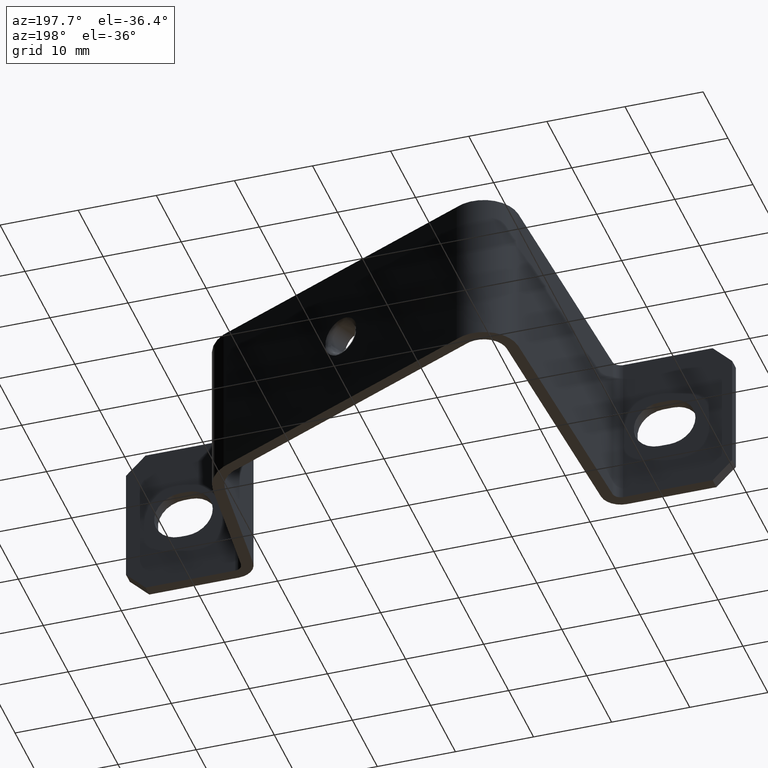
[diagram: clean part render]
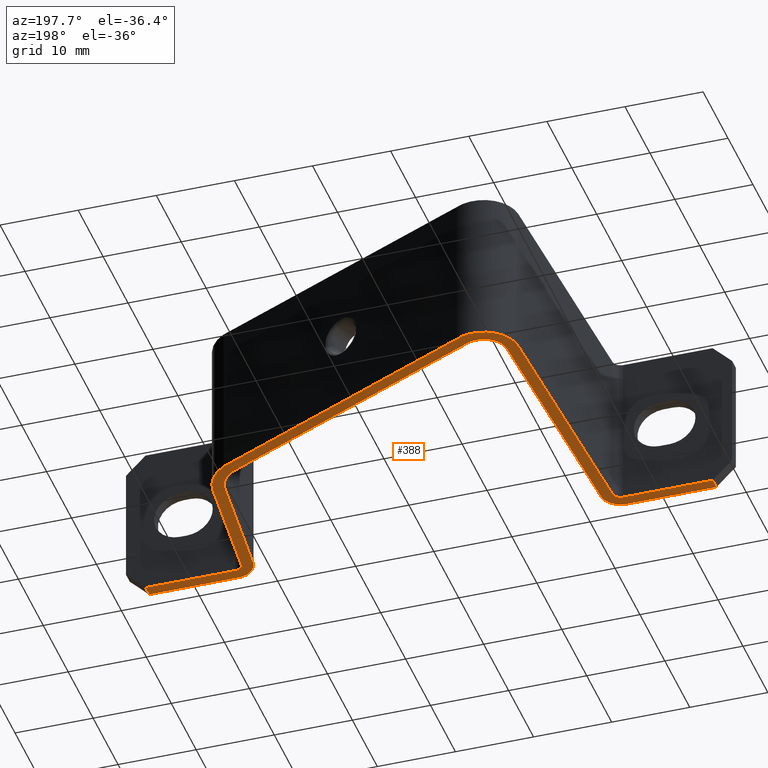
[diagram: same view with one face highlighted and labeled with its STEP entity id]
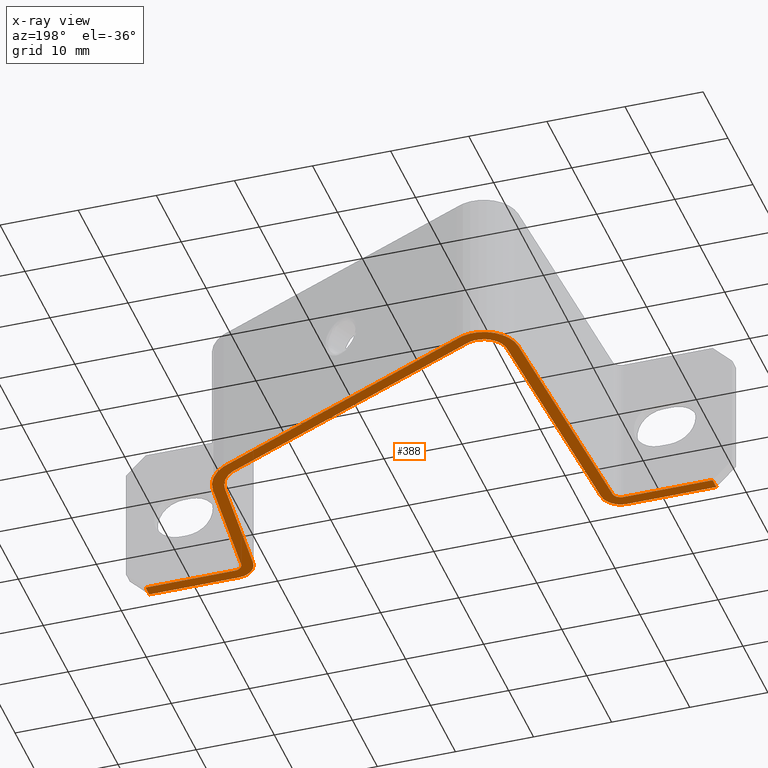
[diagram: x-ray of the same camera — body ghosted, the highlighted face saturated]
A machine part, auxiliary view. The second image highlights one B-rep face of the part: STEP entity #388.
The next image is the same camera in x-ray: the body ghosted, the highlighted face saturated — about 0% of this face is hidden behind the body in this view.
In plain terms, the highlighted planar face has unit normal (0, 0, 1).
Its self-contained STEP definition (entity closure, byte-faithful):
#61 = CARTESIAN_POINT ( 'NONE',  ( 22.26712193765796100, -17.32508999304764800, 0.0000000000000000000 ) ) ;
#76 = CARTESIAN_POINT ( 'NONE',  ( 18.91641958941489300, 1.402966336341362700, 0.0000000000000000000 ) ) ;
#78 = CARTESIAN_POINT ( 'NONE',  ( 36.29832989701920800, -18.10211123343577800, 1.427273590011628100E-013 ) ) ;
#81 = CARTESIAN_POINT ( 'NONE',  ( 24.81578082241102500, -18.10211123343580300, 0.0000000000000000000 ) ) ;
#93 = CARTESIAN_POINT ( 'NONE',  ( 19.66641958941341500, 2.702004442018529400, 0.0000000000000000000 ) ) ;
#95 = CARTESIAN_POINT ( 'NONE',  ( -22.10502829899677100, 15.33762303652876100, 0.0000000000000000000 ) ) ;
#109 = CARTESIAN_POINT ( 'NONE',  ( -24.84160829073462700, -18.10211123343580300, 0.0000000000000000000 ) ) ;
#114 = CARTESIAN_POINT ( 'NONE',  ( -36.29832989701933600, -19.60211123343577800, -2.999626010543229100E-015 ) ) ;
#115 = CARTESIAN_POINT ( 'NONE',  ( -23.80796172078579400, -17.15628235473013800, 0.0000000000000000000 ) ) ;
#123 = CARTESIAN_POINT ( 'NONE',  ( 22.39549042891845300, -1.581778693683322900, 0.0000000000000000000 ) ) ;
#131 = CARTESIAN_POINT ( 'NONE',  ( 23.76141398479526100, -17.19435637892365800, 2.602085213965210600E-015 ) ) ;
#134 = CARTESIAN_POINT ( 'NONE',  ( -36.29832989701933600, -18.10211123343592700, -2.421384851885023600E-015 ) ) ;
#135 = CARTESIAN_POINT ( 'NONE',  ( -20.60708399686504700, 15.25911910216449700, 0.0000000000000000000 ) ) ;
#139 = CARTESIAN_POINT ( 'NONE',  ( -24.84160829073302100, -19.60211123343582400, 0.0000000000000000000 ) ) ;
#140 = CARTESIAN_POINT ( 'NONE',  ( 20.90119838178151200, -1.712512307805548200, 0.0000000000000000000 ) ) ;
#142 = CARTESIAN_POINT ( 'NONE',  ( -22.31001741865414800, -17.23478628909931500, -8.673617379884035500E-016 ) ) ;
#143 = CARTESIAN_POINT ( 'NONE',  ( -15.36119539260161600, 18.99922555046600100, 0.0000000000000000000 ) ) ;
#152 = CARTESIAN_POINT ( 'NONE',  ( 36.29832989701935000, -19.60211123343561800, -2.844852691227826100E-015 ) ) ;
#159 = CARTESIAN_POINT ( 'NONE',  ( -16.11119539260111800, 17.70018744478909100, -2.602085213965210600E-015 ) ) ;
#164 = CARTESIAN_POINT ( 'NONE',  ( 24.81578082240423900, -19.60211123343531300, 0.0000000000000000000 ) ) ;
#287 = EDGE_CURVE ( 'NONE', #1289, #1331, #469, .T. ) ;
#297 = EDGE_CURVE ( 'NONE', #1289, #1323, #1579, .T. ) ;
#306 = EDGE_CURVE ( 'NONE', #1337, #1347, #1554, .T. ) ;
#315 = EDGE_CURVE ( 'NONE', #1342, #1288, #578, .T. ) ;
#321 = EDGE_CURVE ( 'NONE', #1347, #1350, #572, .T. ) ;
#331 = EDGE_CURVE ( 'NONE', #1319, #1337, #625, .T. ) ;
#339 = EDGE_CURVE ( 'NONE', #1331, #1319, #637, .T. ) ;
#344 = EDGE_CURVE ( 'NONE', #1326, #1321, #1633, .T. ) ;
#353 = EDGE_CURVE ( 'NONE', #1349, #1308, #757, .T. ) ;
#357 = EDGE_CURVE ( 'NONE', #1312, #1323, #758, .T. ) ;
#367 = EDGE_CURVE ( 'NONE', #1355, #1310, #809, .T. ) ;
#370 = EDGE_CURVE ( 'NONE', #1326, #1353, #829, .T. ) ;
#375 = EDGE_CURVE ( 'NONE', #1310, #1349, #1619, .T. ) ;
#377 = EDGE_CURVE ( 'NONE', #1288, #1321, #865, .T. ) ;
#378 = EDGE_CURVE ( 'NONE', #1358, #1312, #1624, .T. ) ;
#379 = EDGE_CURVE ( 'NONE', #1353, #1309, #1646, .T. ) ;
#383 = EDGE_CURVE ( 'NONE', #1308, #1340, #1671, .T. ) ;
#388 = ADVANCED_FACE ( 'NONE', ( #904 ), #930, .F. ) ;
#392 = EDGE_CURVE ( 'NONE', #1350, #1355, #1697, .T. ) ;
#396 = EDGE_CURVE ( 'NONE', #1309, #1358, #953, .T. ) ;
#402 = EDGE_CURVE ( 'NONE', #1340, #1342, #547, .T. ) ;
#465 = DIRECTION ( 'NONE',  ( -1.000000000000000000, -0.0000000000000000000, 0.0000000000000000000 ) ) ;
#469 = LINE ( 'NONE', #490, #1590 ) ;
#490 = CARTESIAN_POINT ( 'NONE',  ( -1.072085797398896200, -18.10211123343580300, 0.0000000000000000000 ) ) ;
#507 = CARTESIAN_POINT ( 'NONE',  ( -24.86755580986388400, -17.03707326306874800, 0.0000000000000000000 ) ) ;
#512 = DIRECTION ( 'NONE',  ( 0.0000000000000000000, 0.0000000000000000000, 1.000000000000000000 ) ) ;
#514 = DIRECTION ( 'NONE',  ( -1.000000000000000000, -1.352521674512483800E-015, 0.0000000000000000000 ) ) ;
#518 = DIRECTION ( 'NONE',  ( -1.000000000000000000, 0.0000000000000000000, 0.0000000000000000000 ) ) ;
#526 = DIRECTION ( 'NONE',  ( 0.0000000000000000000, 0.0000000000000000000, 1.000000000000000000 ) ) ;
#528 = CARTESIAN_POINT ( 'NONE',  ( -24.86829296509274200, -17.03522556889397400, 0.0000000000000000000 ) ) ;
#547 = LINE ( 'NONE', #834, #1696 ) ;
#548 = CARTESIAN_POINT ( 'NONE',  ( -22.31001741865413000, -17.23478628909902400, 0.0000000000000000000 ) ) ;
#551 = DIRECTION ( 'NONE',  ( 0.05233595624293496000, 0.9986295347545743900, 0.0000000000000000000 ) ) ;
#558 = DIRECTION ( 'NONE',  ( -1.480297366166873800E-013, 1.000000000000000000, 1.480297366166873800E-013 ) ) ;
#564 = CARTESIAN_POINT ( 'NONE',  ( 36.29832989702696700, -71.00508125087546300, -7.615967947594776000E-012 ) ) ;
#572 = LINE ( 'NONE', #548, #1577 ) ;
#578 = LINE ( 'NONE', #564, #1567 ) ;
#584 = CARTESIAN_POINT ( 'NONE',  ( -1.072085797398896200, -19.60211123343580300, 0.0000000000000000000 ) ) ;
#608 = DIRECTION ( 'NONE',  ( 1.000000000000000000, 0.0000000000000000000, -0.0000000000000000000 ) ) ;
#625 = LINE ( 'NONE', #584, #1651 ) ;
#637 = LINE ( 'NONE', #666, #1628 ) ;
#666 = CARTESIAN_POINT ( 'NONE',  ( -36.29832989701934300, -71.00508125088650500, -7.264154555652879700E-015 ) ) ;
#672 = DIRECTION ( 'NONE',  ( -0.0000000000000000000, -1.000000000000000000, -0.0000000000000000000 ) ) ;
#682 = DIRECTION ( 'NONE',  ( -1.000000000000000000, -3.092945707330217300E-015, 0.0000000000000000000 ) ) ;
#687 = DIRECTION ( 'NONE',  ( 0.0000000000000000000, 0.0000000000000000000, 1.000000000000000000 ) ) ;
#731 = CARTESIAN_POINT ( 'NONE',  ( 24.86273630038882100, -16.98136542211398100, 0.0000000000000000000 ) ) ;
#736 = CARTESIAN_POINT ( 'NONE',  ( 20.90119838178150500, -1.712512307805447200, 0.0000000000000000000 ) ) ;
#750 = CARTESIAN_POINT ( 'NONE',  ( -22.10502829899673900, 15.33762303652848400, 0.0000000000000000000 ) ) ;
#752 = DIRECTION ( 'NONE',  ( -0.05233595624294235000, -0.9986295347545739400, 0.0000000000000000000 ) ) ;
#757 = LINE ( 'NONE', #736, #1636 ) ;
#758 = LINE ( 'NONE', #750, #1606 ) ;
#777 = DIRECTION ( 'NONE',  ( 0.08715574274765430800, -0.9961946980917458800, 0.0000000000000000000 ) ) ;
#786 = CARTESIAN_POINT ( 'NONE',  ( -16.11119539260119600, 17.70018744478913000, 0.0000000000000000000 ) ) ;
#807 = CARTESIAN_POINT ( 'NONE',  ( 23.76141398479525400, -17.19435637892358000, 0.0000000000000000000 ) ) ;
#808 = DIRECTION ( 'NONE',  ( -0.08715574274769320700, 0.9961946980917425500, 0.0000000000000000000 ) ) ;
#809 = LINE ( 'NONE', #786, #1622 ) ;
#825 = DIRECTION ( 'NONE',  ( 0.9066685746074674100, -0.4218436864755277200, 0.0000000000000000000 ) ) ;
#829 = LINE ( 'NONE', #807, #1617 ) ;
#834 = CARTESIAN_POINT ( 'NONE',  ( -1.072085797398896200, -19.60211123343531300, 0.0000000000000000000 ) ) ;
#836 = DIRECTION ( 'NONE',  ( 0.0000000000000000000, 0.0000000000000000000, 1.000000000000000000 ) ) ;
#838 = CARTESIAN_POINT ( 'NONE',  ( -1.072085797398896200, -18.10211123343580300, 0.0000000000000000000 ) ) ;
#841 = DIRECTION ( 'NONE',  ( 0.0000000000000000000, 0.0000000000000000000, 1.000000000000000000 ) ) ;
#843 = CARTESIAN_POINT ( 'NONE',  ( 16.91641958941403300, -2.061135278796311100, 0.0000000000000000000 ) ) ;
#845 = DIRECTION ( 'NONE',  ( -1.000000000000000000, 0.0000000000000000000, 0.0000000000000000000 ) ) ;
#857 = DIRECTION ( 'NONE',  ( -0.0000000000000000000, -0.0000000000000000000, -1.000000000000000000 ) ) ;
#861 = DIRECTION ( 'NONE',  ( -1.000000000000000000, 0.0000000000000000000, 0.0000000000000000000 ) ) ;
#865 = LINE ( 'NONE', #838, #1616 ) ;
#866 = DIRECTION ( 'NONE',  ( 1.000000000000000000, 0.0000000000000000000, -0.0000000000000000000 ) ) ;
#871 = DIRECTION ( 'NONE',  ( -1.000000000000000000, 1.813574543066669500E-015, 0.0000000000000000000 ) ) ;
#872 = CARTESIAN_POINT ( 'NONE',  ( -17.61119539260125300, 15.10211123343579900, 0.0000000000000000000 ) ) ;
#873 = CARTESIAN_POINT ( 'NONE',  ( 16.91641958941403300, -2.061135278796311100, 0.0000000000000000000 ) ) ;
#877 = DIRECTION ( 'NONE',  ( -1.000000000000000000, -0.0000000000000000000, 0.0000000000000000000 ) ) ;
#883 = DIRECTION ( 'NONE',  ( 0.0000000000000000000, 0.0000000000000000000, 1.000000000000000000 ) ) ;
#888 = DIRECTION ( 'NONE',  ( -1.000000000000000000, 0.0000000000000000000, 0.0000000000000000000 ) ) ;
#896 = CARTESIAN_POINT ( 'NONE',  ( -1.072085797398896200, -71.00508125088650500, 0.0000000000000000000 ) ) ;
#904 = FACE_OUTER_BOUND ( 'NONE', #1003, .T. ) ;
#905 = DIRECTION ( 'NONE',  ( 0.0000000000000000000, 0.0000000000000000000, 1.000000000000000000 ) ) ;
#906 = DIRECTION ( 'NONE',  ( 1.000000000000000000, 0.0000000000000000000, -0.0000000000000000000 ) ) ;
#907 = CARTESIAN_POINT ( 'NONE',  ( 24.86044504889228800, -16.98725736556289000, 0.0000000000000000000 ) ) ;
#930 = PLANE ( 'NONE',  #1683 ) ;
#935 = DIRECTION ( 'NONE',  ( -0.0000000000000000000, -0.0000000000000000000, -1.000000000000000000 ) ) ;
#936 = DIRECTION ( 'NONE',  ( -1.000000000000000000, 0.0000000000000000000, 0.0000000000000000000 ) ) ;
#949 = CARTESIAN_POINT ( 'NONE',  ( -17.61119539260125300, 15.10211123343579900, 0.0000000000000000000 ) ) ;
#953 = LINE ( 'NONE', #977, #1669 ) ;
#955 = DIRECTION ( 'NONE',  ( -0.9066685746074657500, 0.4218436864755312800, 0.0000000000000000000 ) ) ;
#977 = CARTESIAN_POINT ( 'NONE',  ( 30.80930168860675200, -2.482419717295680800, 0.0000000000000000000 ) ) ;
#1003 = EDGE_LOOP ( 'NONE', ( #1184, #1304, #1246, #1287, #1296, #1222, #1219, #1281, #1273, #1245, #1177, #1258, #1301, #1274, #1232, #1195, #1249, #1242, #1204, #1244 ) ) ;
#1177 = ORIENTED_EDGE ( 'NONE', *, *, #315, .F. ) ;
#1184 = ORIENTED_EDGE ( 'NONE', *, *, #339, .F. ) ;
#1195 = ORIENTED_EDGE ( 'NONE', *, *, #367, .F. ) ;
#1204 = ORIENTED_EDGE ( 'NONE', *, *, #306, .F. ) ;
#1219 = ORIENTED_EDGE ( 'NONE', *, *, #379, .F. ) ;
#1222 = ORIENTED_EDGE ( 'NONE', *, *, #396, .F. ) ;
#1232 = ORIENTED_EDGE ( 'NONE', *, *, #375, .F. ) ;
#1242 = ORIENTED_EDGE ( 'NONE', *, *, #321, .F. ) ;
#1244 = ORIENTED_EDGE ( 'NONE', *, *, #331, .F. ) ;
#1245 = ORIENTED_EDGE ( 'NONE', *, *, #377, .F. ) ;
#1246 = ORIENTED_EDGE ( 'NONE', *, *, #297, .T. ) ;
#1249 = ORIENTED_EDGE ( 'NONE', *, *, #392, .F. ) ;
#1258 = ORIENTED_EDGE ( 'NONE', *, *, #402, .F. ) ;
#1273 = ORIENTED_EDGE ( 'NONE', *, *, #344, .T. ) ;
#1274 = ORIENTED_EDGE ( 'NONE', *, *, #353, .F. ) ;
#1281 = ORIENTED_EDGE ( 'NONE', *, *, #370, .F. ) ;
#1287 = ORIENTED_EDGE ( 'NONE', *, *, #357, .F. ) ;
#1288 = VERTEX_POINT ( 'NONE', #78 ) ;
#1289 = VERTEX_POINT ( 'NONE', #109 ) ;
#1296 = ORIENTED_EDGE ( 'NONE', *, *, #378, .F. ) ;
#1301 = ORIENTED_EDGE ( 'NONE', *, *, #383, .F. ) ;
#1304 = ORIENTED_EDGE ( 'NONE', *, *, #287, .F. ) ;
#1308 = VERTEX_POINT ( 'NONE', #61 ) ;
#1309 = VERTEX_POINT ( 'NONE', #93 ) ;
#1310 = VERTEX_POINT ( 'NONE', #76 ) ;
#1312 = VERTEX_POINT ( 'NONE', #95 ) ;
#1319 = VERTEX_POINT ( 'NONE', #114 ) ;
#1321 = VERTEX_POINT ( 'NONE', #81 ) ;
#1323 = VERTEX_POINT ( 'NONE', #115 ) ;
#1326 = VERTEX_POINT ( 'NONE', #131 ) ;
#1331 = VERTEX_POINT ( 'NONE', #134 ) ;
#1337 = VERTEX_POINT ( 'NONE', #139 ) ;
#1340 = VERTEX_POINT ( 'NONE', #164 ) ;
#1342 = VERTEX_POINT ( 'NONE', #152 ) ;
#1347 = VERTEX_POINT ( 'NONE', #142 ) ;
#1349 = VERTEX_POINT ( 'NONE', #140 ) ;
#1350 = VERTEX_POINT ( 'NONE', #135 ) ;
#1353 = VERTEX_POINT ( 'NONE', #123 ) ;
#1355 = VERTEX_POINT ( 'NONE', #159 ) ;
#1358 = VERTEX_POINT ( 'NONE', #143 ) ;
#1554 = CIRCLE ( 'NONE', #1561, 2.565169207513200000 ) ;
#1561 = AXIS2_PLACEMENT_3D ( 'NONE', #507, #512, #514 ) ;
#1567 = VECTOR ( 'NONE', #558, 1000.000000000000000 ) ;
#1577 = VECTOR ( 'NONE', #551, 1000.000000000000100 ) ;
#1579 = CIRCLE ( 'NONE', #1593, 1.067219327528543800 ) ;
#1590 = VECTOR ( 'NONE', #465, 1000.000000000000000 ) ;
#1593 = AXIS2_PLACEMENT_3D ( 'NONE', #528, #526, #518 ) ;
#1605 = AXIS2_PLACEMENT_3D ( 'NONE', #731, #687, #682 ) ;
#1606 = VECTOR ( 'NONE', #752, 1000.000000000000100 ) ;
#1616 = VECTOR ( 'NONE', #877, 1000.000000000000000 ) ;
#1617 = VECTOR ( 'NONE', #808, 999.9999999999998900 ) ;
#1619 = CIRCLE ( 'NONE', #1620, 4.000000000000389000 ) ;
#1620 = AXIS2_PLACEMENT_3D ( 'NONE', #873, #857, #861 ) ;
#1622 = VECTOR ( 'NONE', #825, 1000.000000000000100 ) ;
#1624 = CIRCLE ( 'NONE', #1644, 4.499999999999968900 ) ;
#1628 = VECTOR ( 'NONE', #672, 1000.000000000000000 ) ;
#1633 = CIRCLE ( 'NONE', #1605, 1.121729018304814300 ) ;
#1636 = VECTOR ( 'NONE', #777, 1000.000000000000000 ) ;
#1644 = AXIS2_PLACEMENT_3D ( 'NONE', #872, #841, #845 ) ;
#1646 = CIRCLE ( 'NONE', #1658, 5.499999999999976900 ) ;
#1651 = VECTOR ( 'NONE', #608, 1000.000000000000000 ) ;
#1658 = AXIS2_PLACEMENT_3D ( 'NONE', #843, #836, #871 ) ;
#1669 = VECTOR ( 'NONE', #955, 1000.000000000000000 ) ;
#1671 = CIRCLE ( 'NONE', #1674, 2.615235294090238600 ) ;
#1674 = AXIS2_PLACEMENT_3D ( 'NONE', #907, #905, #888 ) ;
#1683 = AXIS2_PLACEMENT_3D ( 'NONE', #896, #883, #906 ) ;
#1696 = VECTOR ( 'NONE', #866, 1000.000000000000000 ) ;
#1697 = CIRCLE ( 'NONE', #1704, 3.000000000000054600 ) ;
#1704 = AXIS2_PLACEMENT_3D ( 'NONE', #949, #935, #936 ) ;